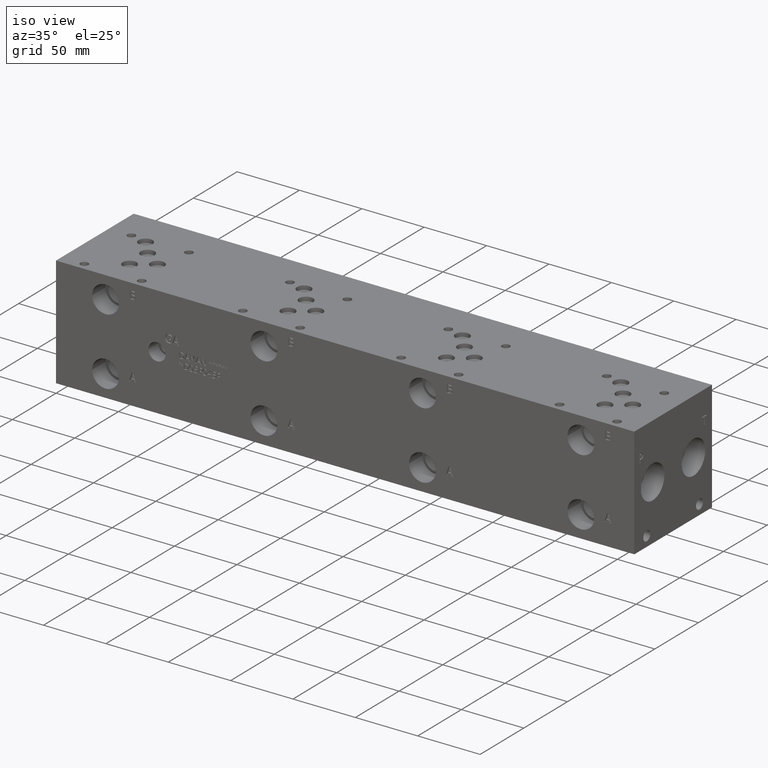
[diagram: clean part render]
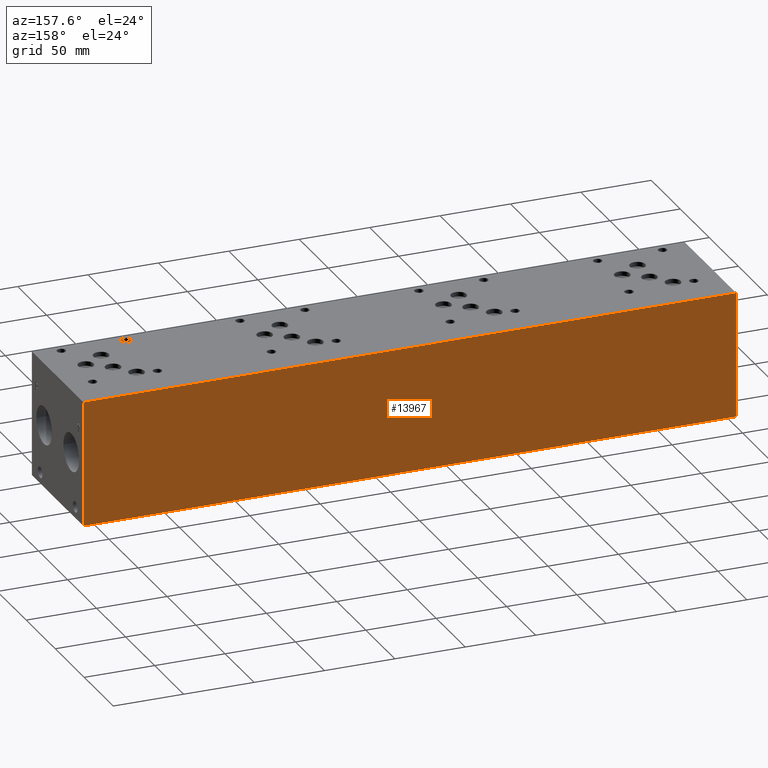
[diagram: tour spotlight — one face highlighted and labeled with its STEP entity id]
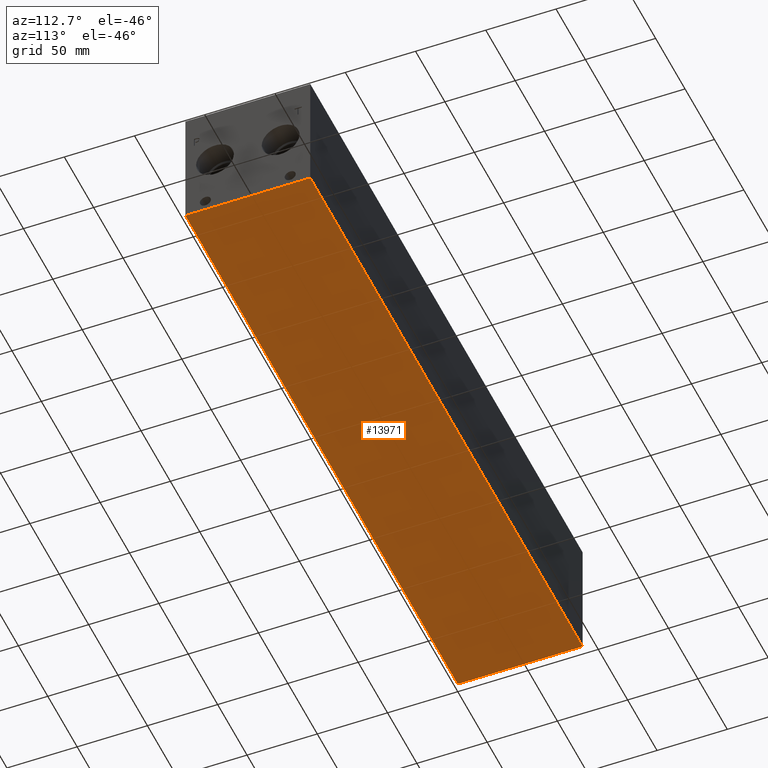
[diagram: tour spotlight — one face highlighted and labeled with its STEP entity id]
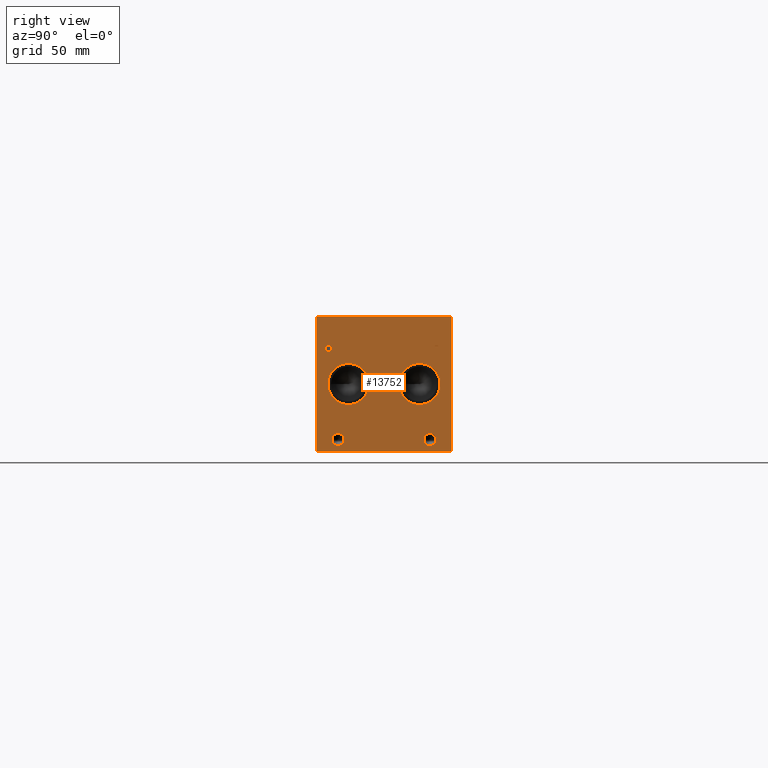
[diagram: tour spotlight — one face highlighted and labeled with its STEP entity id]
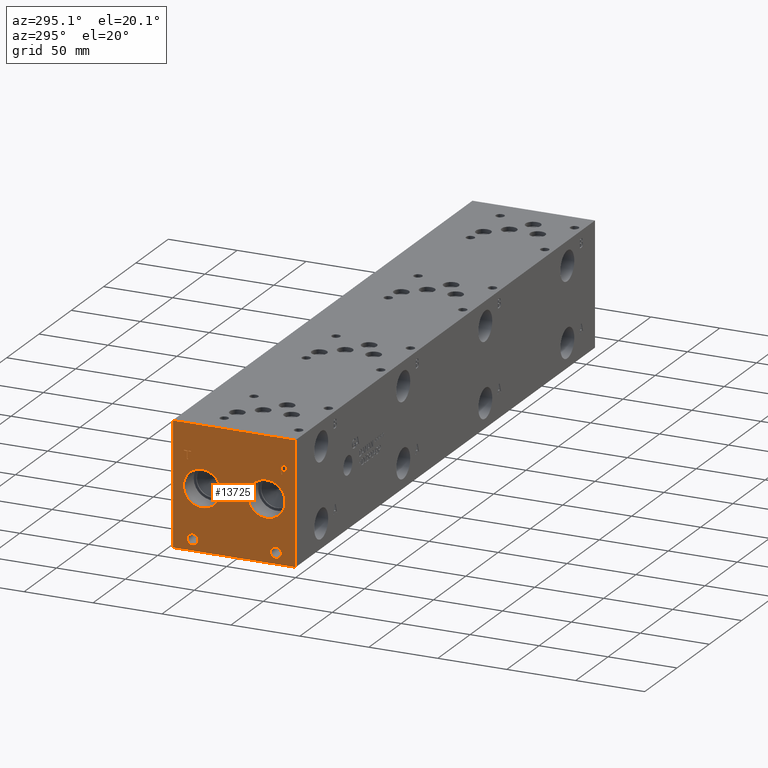
[diagram: tour spotlight — one face highlighted and labeled with its STEP entity id]
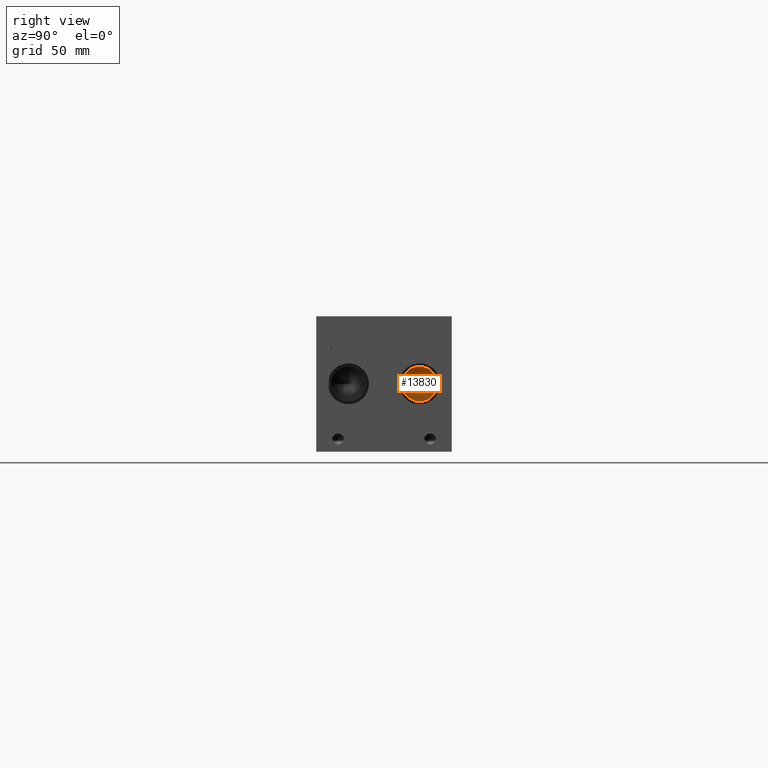
[diagram: tour spotlight — one face highlighted and labeled with its STEP entity id]
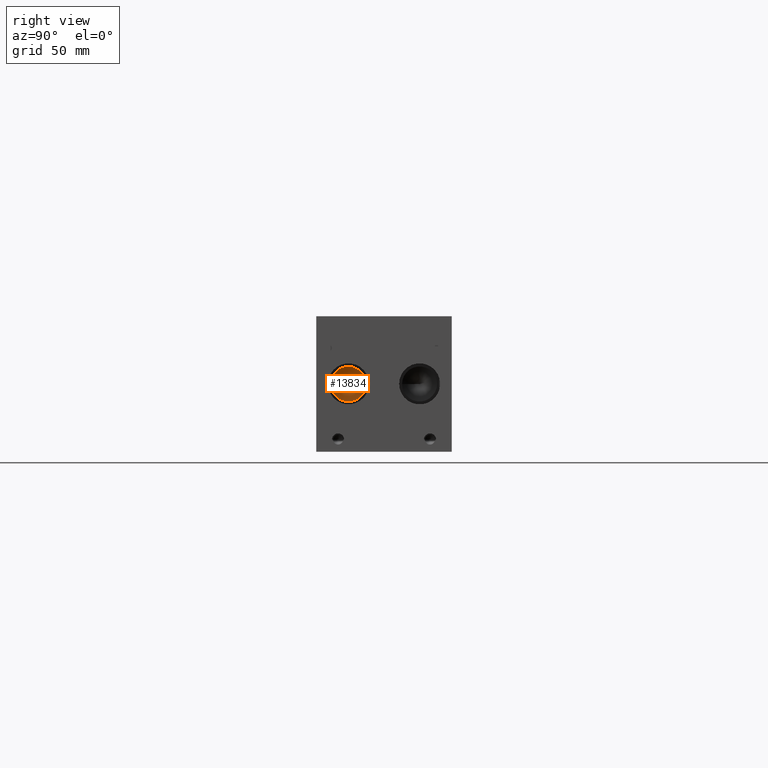
[diagram: tour spotlight — one face highlighted and labeled with its STEP entity id]
A machine part: a face-by-face anatomy tour. The part has 719 B-rep faces; the first image is the clean iso view, then the 6 largest visible faces are spotlighted one at a time (largest first), each with its STEP entity span.

Face 1 — auxiliary view, entity #13967. In plain terms, the highlighted planar face has unit normal (0, 1, 0).
Definition (entity closure, byte-faithful):
#2310=FACE_OUTER_BOUND('',#3135,.T.);
#3135=EDGE_LOOP('',(#12743,#12744,#12745,#12746));
#4176=LINE('',#22416,#5462);
#4234=LINE('',#22687,#5520);
#4456=LINE('',#23965,#5742);
#4457=LINE('',#23966,#5743);
#5462=VECTOR('',#16528,10.);
#5520=VECTOR('',#16640,10.);
#5742=VECTOR('',#17802,10.);
#5743=VECTOR('',#17803,10.);
#6636=VERTEX_POINT('',#22412);
#6637=VERTEX_POINT('',#22414);
#6694=VERTEX_POINT('',#22684);
#6695=VERTEX_POINT('',#22686);
#8402=EDGE_CURVE('',#6636,#6637,#4176,.T.);
#8484=EDGE_CURVE('',#6694,#6695,#4234,.T.);
#8997=EDGE_CURVE('',#6694,#6636,#4456,.T.);
#8998=EDGE_CURVE('',#6695,#6637,#4457,.T.);
#12743=ORIENTED_EDGE('',*,*,#8997,.T.);
#12744=ORIENTED_EDGE('',*,*,#8402,.T.);
#12745=ORIENTED_EDGE('',*,*,#8998,.F.);
#12746=ORIENTED_EDGE('',*,*,#8484,.F.);
#13248=PLANE('',#14827);
#13967=ADVANCED_FACE('',(#2310),#13248,.T.);
#14827=AXIS2_PLACEMENT_3D('',#23964,#17800,#17801);
#16528=DIRECTION('',(0.,0.,1.));
#16640=DIRECTION('',(0.,0.,1.));
#17800=DIRECTION('center_axis',(0.,1.,0.));
#17801=DIRECTION('ref_axis',(-1.,0.,0.));
#17802=DIRECTION('',(-1.,0.,0.));
#17803=DIRECTION('',(-1.,0.,0.));
#22412=CARTESIAN_POINT('',(0.,88.9,0.));
#22414=CARTESIAN_POINT('',(0.,88.9,88.9));
#22416=CARTESIAN_POINT('',(0.,88.9,0.));
#22684=CARTESIAN_POINT('',(463.55,88.9,0.));
#22686=CARTESIAN_POINT('',(463.55,88.9,88.9));
#22687=CARTESIAN_POINT('',(463.55,88.9,0.));
#23964=CARTESIAN_POINT('Origin',(463.55,88.9,0.));
#23965=CARTESIAN_POINT('',(463.55,88.9,0.));
#23966=CARTESIAN_POINT('',(463.55,88.9,88.9));

Face 2 — auxiliary view, entity #13971. In plain terms, the highlighted planar face has unit normal (0, 0, 1).
Definition (entity closure, byte-faithful):
#2314=FACE_OUTER_BOUND('',#3171,.T.);
#3171=EDGE_LOOP('',(#12829,#12830,#12831,#12832));
#3205=LINE('',#17883,#4491);
#4174=LINE('',#22413,#5460);
#4233=LINE('',#22685,#5519);
#4456=LINE('',#23965,#5742);
#4491=VECTOR('',#14893,10.);
#5460=VECTOR('',#16526,10.);
#5519=VECTOR('',#16639,10.);
#5742=VECTOR('',#17802,10.);
#5766=VERTEX_POINT('',#17881);
#5767=VERTEX_POINT('',#17882);
#6636=VERTEX_POINT('',#22412);
#6694=VERTEX_POINT('',#22684);
#7115=EDGE_CURVE('',#5766,#5767,#3205,.T.);
#8400=EDGE_CURVE('',#6636,#5766,#4174,.T.);
#8483=EDGE_CURVE('',#5767,#6694,#4233,.T.);
#8997=EDGE_CURVE('',#6694,#6636,#4456,.T.);
#12829=ORIENTED_EDGE('',*,*,#7115,.F.);
#12830=ORIENTED_EDGE('',*,*,#8400,.F.);
#12831=ORIENTED_EDGE('',*,*,#8997,.F.);
#12832=ORIENTED_EDGE('',*,*,#8483,.F.);
#13252=PLANE('',#14831);
#13971=ADVANCED_FACE('',(#2314),#13252,.F.);
#14831=AXIS2_PLACEMENT_3D('',#23970,#17810,#17811);
#14893=DIRECTION('',(1.,0.,0.));
#16526=DIRECTION('',(0.,-1.,0.));
#16639=DIRECTION('',(0.,1.,0.));
#17802=DIRECTION('',(-1.,0.,0.));
#17810=DIRECTION('center_axis',(0.,0.,1.));
#17811=DIRECTION('ref_axis',(1.,0.,0.));
#17881=CARTESIAN_POINT('',(0.,0.,0.));
#17882=CARTESIAN_POINT('',(463.55,0.,0.));
#17883=CARTESIAN_POINT('',(0.,0.,0.));
#22412=CARTESIAN_POINT('',(0.,88.9,0.));
#22413=CARTESIAN_POINT('',(0.,88.9,0.));
#22684=CARTESIAN_POINT('',(463.55,88.9,0.));
#22685=CARTESIAN_POINT('',(463.55,0.,0.));
#23965=CARTESIAN_POINT('',(463.55,88.9,0.));
#23970=CARTESIAN_POINT('Origin',(231.775,44.45,0.));

Face 3 — right view, entity #13752. In plain terms, the highlighted planar face has unit normal (1, 0, 0).
Definition (entity closure, byte-faithful):
#853=CIRCLE('',#14358,13.462);
#854=CIRCLE('',#14359,13.462);
#855=CIRCLE('',#14360,13.462);
#856=CIRCLE('',#14361,13.462);
#857=CIRCLE('',#14362,3.9624);
#858=CIRCLE('',#14363,3.9624);
#859=CIRCLE('',#14364,3.9624);
#860=CIRCLE('',#14365,3.9624);
#1428=B_SPLINE_CURVE_WITH_KNOTS('',2,(#22586,#22587,#22588,#22589),
 .UNSPECIFIED.,.F.,.F.,(3,1,3),(0.,1.,2.),.UNSPECIFIED.);
#1430=B_SPLINE_CURVE_WITH_KNOTS('',2,(#22607,#22608,#22609,#22610),
 .UNSPECIFIED.,.F.,.F.,(3,1,3),(0.,1.,2.),.UNSPECIFIED.);
#1432=B_SPLINE_CURVE_WITH_KNOTS('',2,(#22656,#22657,#22658,#22659),
 .UNSPECIFIED.,.F.,.F.,(3,1,3),(0.,1.,2.),.UNSPECIFIED.);
#1434=B_SPLINE_CURVE_WITH_KNOTS('',2,(#22674,#22675,#22676,#22677),
 .UNSPECIFIED.,.F.,.F.,(3,1,3),(0.,1.,2.),.UNSPECIFIED.);
#1522=FACE_BOUND('',#2879,.T.);
#1523=FACE_BOUND('',#2880,.T.);
#1524=FACE_BOUND('',#2881,.T.);
#1525=FACE_BOUND('',#2882,.T.);
#1526=FACE_BOUND('',#2883,.T.);
#1527=FACE_BOUND('',#2884,.T.);
#2095=FACE_OUTER_BOUND('',#2878,.T.);
#2878=EDGE_LOOP('',(#11725,#11726,#11727,#11728));
#2879=EDGE_LOOP('',(#11729,#11730));
#2880=EDGE_LOOP('',(#11731,#11732));
#2881=EDGE_LOOP('',(#11733,#11734));
#2882=EDGE_LOOP('',(#11735,#11736));
#2883=EDGE_LOOP('',(#11737,#11738,#11739,#11740,#11741,#11742,#11743,#11744));
#2884=EDGE_LOOP('',(#11745,#11746,#11747,#11748,#11749,#11750,#11751,#11752,
#11753));
#3206=LINE('',#17885,#4492);
#4217=LINE('',#22619,#5503);
#4220=LINE('',#22625,#5506);
#4223=LINE('',#22631,#5509);
#4226=LINE('',#22637,#5512);
#4229=LINE('',#22643,#5515);
#4233=LINE('',#22685,#5519);
#4234=LINE('',#22687,#5520);
#4235=LINE('',#22688,#5521);
#4236=LINE('',#22707,#5522);
#4237=LINE('',#22709,#5523);
#4238=LINE('',#22711,#5524);
#4239=LINE('',#22713,#5525);
#4240=LINE('',#22715,#5526);
#4241=LINE('',#22717,#5527);
#4242=LINE('',#22719,#5528);
#4243=LINE('',#22720,#5529);
#4492=VECTOR('',#14894,10.);
#5503=VECTOR('',#16611,10.);
#5506=VECTOR('',#16616,10.);
#5509=VECTOR('',#16621,10.);
#5512=VECTOR('',#16626,10.);
#5515=VECTOR('',#16631,10.);
#5519=VECTOR('',#16639,10.);
#5520=VECTOR('',#16640,10.);
#5521=VECTOR('',#16641,10.);
#5522=VECTOR('',#16658,10.);
#5523=VECTOR('',#16659,10.);
#5524=VECTOR('',#16660,10.);
#5525=VECTOR('',#16661,10.);
#5526=VECTOR('',#16662,10.);
#5527=VECTOR('',#16663,10.);
#5528=VECTOR('',#16664,10.);
#5529=VECTOR('',#16665,10.);
#5767=VERTEX_POINT('',#17882);
#5768=VERTEX_POINT('',#17884);
#6676=VERTEX_POINT('',#22584);
#6677=VERTEX_POINT('',#22585);
#6680=VERTEX_POINT('',#22606);
#6682=VERTEX_POINT('',#22618);
#6684=VERTEX_POINT('',#22624);
#6686=VERTEX_POINT('',#22630);
#6688=VERTEX_POINT('',#22636);
#6690=VERTEX_POINT('',#22642);
#6692=VERTEX_POINT('',#22655);
#6694=VERTEX_POINT('',#22684);
#6695=VERTEX_POINT('',#22686);
#6696=VERTEX_POINT('',#22689);
#6697=VERTEX_POINT('',#22690);
#6698=VERTEX_POINT('',#22693);
#6699=VERTEX_POINT('',#22694);
#6700=VERTEX_POINT('',#22697);
#6701=VERTEX_POINT('',#22698);
#6702=VERTEX_POINT('',#22701);
#6703=VERTEX_POINT('',#22702);
#6704=VERTEX_POINT('',#22705);
#6705=VERTEX_POINT('',#22706);
#6706=VERTEX_POINT('',#22708);
#6707=VERTEX_POINT('',#22710);
#6708=VERTEX_POINT('',#22712);
#6709=VERTEX_POINT('',#22714);
#6710=VERTEX_POINT('',#22716);
#6711=VERTEX_POINT('',#22718);
#7116=EDGE_CURVE('',#5767,#5768,#3206,.T.);
#8456=EDGE_CURVE('',#6676,#6677,#1428,.T.);
#8460=EDGE_CURVE('',#6680,#6676,#1430,.T.);
#8463=EDGE_CURVE('',#6682,#6680,#4217,.T.);
#8466=EDGE_CURVE('',#6684,#6682,#4220,.T.);
#8469=EDGE_CURVE('',#6686,#6684,#4223,.T.);
#8472=EDGE_CURVE('',#6688,#6686,#4226,.T.);
#8475=EDGE_CURVE('',#6690,#6688,#4229,.T.);
#8478=EDGE_CURVE('',#6692,#6690,#1432,.T.);
#8481=EDGE_CURVE('',#6677,#6692,#1434,.T.);
#8483=EDGE_CURVE('',#5767,#6694,#4233,.T.);
#8484=EDGE_CURVE('',#6694,#6695,#4234,.T.);
#8485=EDGE_CURVE('',#5768,#6695,#4235,.T.);
#8486=EDGE_CURVE('',#6696,#6697,#853,.T.);
#8487=EDGE_CURVE('',#6697,#6696,#854,.T.);
#8488=EDGE_CURVE('',#6698,#6699,#855,.T.);
#8489=EDGE_CURVE('',#6699,#6698,#856,.T.);
#8490=EDGE_CURVE('',#6700,#6701,#857,.T.);
#8491=EDGE_CURVE('',#6701,#6700,#858,.T.);
#8492=EDGE_CURVE('',#6702,#6703,#859,.T.);
#8493=EDGE_CURVE('',#6703,#6702,#860,.T.);
#8494=EDGE_CURVE('',#6704,#6705,#4236,.T.);
#8495=EDGE_CURVE('',#6705,#6706,#4237,.T.);
#8496=EDGE_CURVE('',#6706,#6707,#4238,.T.);
#8497=EDGE_CURVE('',#6707,#6708,#4239,.T.);
#8498=EDGE_CURVE('',#6708,#6709,#4240,.T.);
#8499=EDGE_CURVE('',#6709,#6710,#4241,.T.);
#8500=EDGE_CURVE('',#6710,#6711,#4242,.T.);
#8501=EDGE_CURVE('',#6711,#6704,#4243,.T.);
#11725=ORIENTED_EDGE('',*,*,#8483,.T.);
#11726=ORIENTED_EDGE('',*,*,#8484,.T.);
#11727=ORIENTED_EDGE('',*,*,#8485,.F.);
#11728=ORIENTED_EDGE('',*,*,#7116,.F.);
#11729=ORIENTED_EDGE('',*,*,#8486,.T.);
#11730=ORIENTED_EDGE('',*,*,#8487,.T.);
#11731=ORIENTED_EDGE('',*,*,#8488,.T.);
#11732=ORIENTED_EDGE('',*,*,#8489,.T.);
#11733=ORIENTED_EDGE('',*,*,#8490,.T.);
#11734=ORIENTED_EDGE('',*,*,#8491,.T.);
#11735=ORIENTED_EDGE('',*,*,#8492,.T.);
#11736=ORIENTED_EDGE('',*,*,#8493,.T.);
#11737=ORIENTED_EDGE('',*,*,#8494,.T.);
#11738=ORIENTED_EDGE('',*,*,#8495,.T.);
#11739=ORIENTED_EDGE('',*,*,#8496,.T.);
#11740=ORIENTED_EDGE('',*,*,#8497,.T.);
#11741=ORIENTED_EDGE('',*,*,#8498,.T.);
#11742=ORIENTED_EDGE('',*,*,#8499,.T.);
#11743=ORIENTED_EDGE('',*,*,#8500,.T.);
#11744=ORIENTED_EDGE('',*,*,#8501,.T.);
#11745=ORIENTED_EDGE('',*,*,#8456,.T.);
#11746=ORIENTED_EDGE('',*,*,#8481,.T.);
#11747=ORIENTED_EDGE('',*,*,#8478,.T.);
#11748=ORIENTED_EDGE('',*,*,#8475,.T.);
#11749=ORIENTED_EDGE('',*,*,#8472,.T.);
#11750=ORIENTED_EDGE('',*,*,#8469,.T.);
#11751=ORIENTED_EDGE('',*,*,#8466,.T.);
#11752=ORIENTED_EDGE('',*,*,#8463,.T.);
#11753=ORIENTED_EDGE('',*,*,#8460,.T.);
#13178=PLANE('',#14357);
#13752=ADVANCED_FACE('',(#2095,#1522,#1523,#1524,#1525,#1526,#1527),#13178,
 .T.);
#14357=AXIS2_PLACEMENT_3D('',#22683,#16637,#16638);
#14358=AXIS2_PLACEMENT_3D('',#22691,#16642,#16643);
#14359=AXIS2_PLACEMENT_3D('',#22692,#16644,#16645);
#14360=AXIS2_PLACEMENT_3D('',#22695,#16646,#16647);
#14361=AXIS2_PLACEMENT_3D('',#22696,#16648,#16649);
#14362=AXIS2_PLACEMENT_3D('',#22699,#16650,#16651);
#14363=AXIS2_PLACEMENT_3D('',#22700,#16652,#16653);
#14364=AXIS2_PLACEMENT_3D('',#22703,#16654,#16655);
#14365=AXIS2_PLACEMENT_3D('',#22704,#16656,#16657);
#14894=DIRECTION('',(0.,0.,1.));
#16611=DIRECTION('',(0.,1.,0.));
#16616=DIRECTION('',(0.,0.,1.));
#16621=DIRECTION('',(0.,-1.,0.));
#16626=DIRECTION('',(0.,0.,-1.));
#16631=DIRECTION('',(0.,-1.,0.));
#16637=DIRECTION('center_axis',(1.,0.,0.));
#16638=DIRECTION('ref_axis',(0.,1.,0.));
#16639=DIRECTION('',(0.,1.,0.));
#16640=DIRECTION('',(0.,0.,1.));
#16641=DIRECTION('',(0.,1.,0.));
#16642=DIRECTION('center_axis',(-1.,0.,0.));
#16643=DIRECTION('ref_axis',(0.,1.,0.));
#16644=DIRECTION('center_axis',(-1.,0.,0.));
#16645=DIRECTION('ref_axis',(0.,1.,0.));
#16646=DIRECTION('center_axis',(-1.,0.,0.));
#16647=DIRECTION('ref_axis',(0.,1.,0.));
#16648=DIRECTION('center_axis',(-1.,0.,0.));
#16649=DIRECTION('ref_axis',(0.,1.,0.));
#16650=DIRECTION('center_axis',(-1.,0.,0.));
#16651=DIRECTION('ref_axis',(0.,1.,0.));
#16652=DIRECTION('center_axis',(-1.,0.,0.));
#16653=DIRECTION('ref_axis',(0.,1.,0.));
#16654=DIRECTION('center_axis',(-1.,0.,0.));
#16655=DIRECTION('ref_axis',(0.,1.,0.));
#16656=DIRECTION('center_axis',(-1.,0.,0.));
#16657=DIRECTION('ref_axis',(0.,1.,0.));
#16658=DIRECTION('',(0.,-1.,0.));
#16659=DIRECTION('',(0.,0.,1.));
#16660=DIRECTION('',(0.,-1.,0.));
#16661=DIRECTION('',(0.,0.,1.));
#16662=DIRECTION('',(0.,1.,0.));
#16663=DIRECTION('',(0.,0.,-1.));
#16664=DIRECTION('',(0.,-1.,0.));
#16665=DIRECTION('',(0.,0.,-1.));
#17882=CARTESIAN_POINT('',(463.55,0.,0.));
#17884=CARTESIAN_POINT('',(463.55,0.,88.9));
#17885=CARTESIAN_POINT('',(463.55,0.,0.));
#22584=CARTESIAN_POINT('',(463.55,9.45681720235939,69.4537681439707));
#22585=CARTESIAN_POINT('',(463.55,10.213259654532,67.935737372604));
#22586=CARTESIAN_POINT('Ctrl Pts',(463.55,9.45681720235939,69.4537681439707));
#22587=CARTESIAN_POINT('Ctrl Pts',(463.55,9.81188202684857,69.2119123939564));
#22588=CARTESIAN_POINT('Ctrl Pts',(463.55,10.213259654532,68.4657616758269));
#22589=CARTESIAN_POINT('Ctrl Pts',(463.55,10.213259654532,67.935737372604));
#22606=CARTESIAN_POINT('',(463.55,7.7947021543883,69.8499999046326));
#22607=CARTESIAN_POINT('Ctrl Pts',(463.55,7.7947021543883,69.8499999046326));
#22608=CARTESIAN_POINT('Ctrl Pts',(463.55,8.36074752676236,69.8499999046326));
#22609=CARTESIAN_POINT('Ctrl Pts',(463.55,9.15321104808603,69.6647486918556));
#22610=CARTESIAN_POINT('Ctrl Pts',(463.55,9.45681720235939,69.4537681439707));
#22618=CARTESIAN_POINT('',(463.55,6.19948337769779,69.8499999046326));
#22619=CARTESIAN_POINT('',(463.55,3.09974168884889,69.8499999046326));
#22624=CARTESIAN_POINT('',(463.55,6.19948337769779,63.5));
#22625=CARTESIAN_POINT('',(463.55,6.19948337769779,31.75));
#22630=CARTESIAN_POINT('',(463.55,7.04340556923729,63.5));
#22631=CARTESIAN_POINT('',(463.55,3.52170278461864,63.5));
#22636=CARTESIAN_POINT('',(463.55,7.04340556923729,65.8670988299279));
#22637=CARTESIAN_POINT('',(463.55,7.04340556923729,32.9335494149639));
#22642=CARTESIAN_POINT('',(463.55,7.75868108523723,65.8670988299279));
#22643=CARTESIAN_POINT('',(463.55,3.87934054261861,65.8670988299279));
#22655=CARTESIAN_POINT('',(463.55,9.6575060162011,66.5257698086904));
#22656=CARTESIAN_POINT('Ctrl Pts',(463.55,9.6575060162011,66.5257698086904));
#22657=CARTESIAN_POINT('Ctrl Pts',(463.55,9.32817052681983,66.2015801863307));
#22658=CARTESIAN_POINT('Ctrl Pts',(463.55,8.43793553208609,65.8670988299279));
#22659=CARTESIAN_POINT('Ctrl Pts',(463.55,7.75868108523723,65.8670988299279));
#22674=CARTESIAN_POINT('Ctrl Pts',(463.55,10.213259654532,67.935737372604));
#22675=CARTESIAN_POINT('Ctrl Pts',(463.55,10.213259654532,67.5240680108774));
#22676=CARTESIAN_POINT('Ctrl Pts',(463.55,9.9199452343018,66.7830631597695));
#22677=CARTESIAN_POINT('Ctrl Pts',(463.55,9.6575060162011,66.5257698086904));
#22683=CARTESIAN_POINT('Origin',(463.55,0.,0.));
#22684=CARTESIAN_POINT('',(463.55,88.9,0.));
#22685=CARTESIAN_POINT('',(463.55,0.,0.));
#22686=CARTESIAN_POINT('',(463.55,88.9,88.9));
#22687=CARTESIAN_POINT('',(463.55,88.9,0.));
#22688=CARTESIAN_POINT('',(463.55,0.,88.9));
#22689=CARTESIAN_POINT('',(463.55,34.544,44.45));
#22690=CARTESIAN_POINT('',(463.55,7.62,44.45));
#22691=CARTESIAN_POINT('Origin',(463.55,21.082,44.45));
#22692=CARTESIAN_POINT('Origin',(463.55,21.082,44.45));
#22693=CARTESIAN_POINT('',(463.55,81.28,44.45));
#22694=CARTESIAN_POINT('',(463.55,54.356,44.45));
#22695=CARTESIAN_POINT('Origin',(463.55,67.818,44.45));
#22696=CARTESIAN_POINT('Origin',(463.55,67.818,44.45));
#22697=CARTESIAN_POINT('',(463.55,78.5876,7.9248));
#22698=CARTESIAN_POINT('',(463.55,70.6628,7.9248));
#22699=CARTESIAN_POINT('Origin',(463.55,74.6252,7.9248));
#22700=CARTESIAN_POINT('Origin',(463.55,74.6252,7.9248));
#22701=CARTESIAN_POINT('',(463.55,18.2372,7.9248));
#22702=CARTESIAN_POINT('',(463.55,10.3124,7.9248));
#22703=CARTESIAN_POINT('Origin',(463.55,14.2748,7.9248));
#22704=CARTESIAN_POINT('Origin',(463.55,14.2748,7.9248));
#22705=CARTESIAN_POINT('',(463.55,80.756665271453,63.5));
#22706=CARTESIAN_POINT('',(463.55,79.9127430799135,63.5));
#22707=CARTESIAN_POINT('',(463.55,40.3783326357265,63.5));
#22708=CARTESIAN_POINT('',(463.55,79.9127430799135,69.0987033194816));
#22709=CARTESIAN_POINT('',(463.55,79.9127430799135,31.75));
#22710=CARTESIAN_POINT('',(463.55,77.7823541329784,69.0987033194816));
#22711=CARTESIAN_POINT('',(463.55,39.9563715399567,69.0987033194816));
#22712=CARTESIAN_POINT('',(463.55,77.7823541329784,69.8499999046326));
#22713=CARTESIAN_POINT('',(463.55,77.7823541329784,34.5493516597408));
#22714=CARTESIAN_POINT('',(463.55,82.8870542183881,69.8499999046326));
#22715=CARTESIAN_POINT('',(463.55,38.8911770664892,69.8499999046326));
#22716=CARTESIAN_POINT('',(463.55,82.8870542183881,69.0987033194816));
#22717=CARTESIAN_POINT('',(463.55,82.8870542183881,34.9249999523163));
#22718=CARTESIAN_POINT('',(463.55,80.756665271453,69.0987033194816));
#22719=CARTESIAN_POINT('',(463.55,41.443527109194,69.0987033194816));
#22720=CARTESIAN_POINT('',(463.55,80.756665271453,34.5493516597408));

Face 4 — auxiliary view, entity #13725. In plain terms, the highlighted planar face has unit normal (-1, 0, 0).
Definition (entity closure, byte-faithful):
#845=CIRCLE('',#14331,3.9624);
#846=CIRCLE('',#14332,3.9624);
#847=CIRCLE('',#14333,3.9624);
#848=CIRCLE('',#14334,3.9624);
#849=CIRCLE('',#14335,13.462);
#850=CIRCLE('',#14336,13.462);
#851=CIRCLE('',#14337,13.462);
#852=CIRCLE('',#14338,13.462);
#1412=B_SPLINE_CURVE_WITH_KNOTS('',2,(#22314,#22315,#22316,#22317),
 .UNSPECIFIED.,.F.,.F.,(3,1,3),(0.,1.,2.),.UNSPECIFIED.);
#1414=B_SPLINE_CURVE_WITH_KNOTS('',2,(#22335,#22336,#22337,#22338),
 .UNSPECIFIED.,.F.,.F.,(3,1,3),(0.,1.,2.),.UNSPECIFIED.);
#1416=B_SPLINE_CURVE_WITH_KNOTS('',2,(#22384,#22385,#22386,#22387),
 .UNSPECIFIED.,.F.,.F.,(3,1,3),(0.,1.,2.),.UNSPECIFIED.);
#1418=B_SPLINE_CURVE_WITH_KNOTS('',2,(#22402,#22403,#22404,#22405),
 .UNSPECIFIED.,.F.,.F.,(3,1,3),(0.,1.,2.),.UNSPECIFIED.);
#1515=FACE_BOUND('',#2845,.T.);
#1516=FACE_BOUND('',#2846,.T.);
#1517=FACE_BOUND('',#2847,.T.);
#1518=FACE_BOUND('',#2848,.T.);
#1519=FACE_BOUND('',#2849,.T.);
#1520=FACE_BOUND('',#2850,.T.);
#2068=FACE_OUTER_BOUND('',#2844,.T.);
#2844=EDGE_LOOP('',(#11576,#11577,#11578,#11579));
#2845=EDGE_LOOP('',(#11580,#11581));
#2846=EDGE_LOOP('',(#11582,#11583));
#2847=EDGE_LOOP('',(#11584,#11585));
#2848=EDGE_LOOP('',(#11586,#11587));
#2849=EDGE_LOOP('',(#11588,#11589,#11590,#11591,#11592,#11593,#11594,#11595));
#2850=EDGE_LOOP('',(#11596,#11597,#11598,#11599,#11600,#11601,#11602,#11603,
#11604));
#3208=LINE('',#17888,#4494);
#4158=LINE('',#22347,#5444);
#4161=LINE('',#22353,#5447);
#4164=LINE('',#22359,#5450);
#4167=LINE('',#22365,#5453);
#4170=LINE('',#22371,#5456);
#4174=LINE('',#22413,#5460);
#4175=LINE('',#22415,#5461);
#4176=LINE('',#22416,#5462);
#4177=LINE('',#22435,#5463);
#4178=LINE('',#22437,#5464);
#4179=LINE('',#22439,#5465);
#4180=LINE('',#22441,#5466);
#4181=LINE('',#22443,#5467);
#4182=LINE('',#22445,#5468);
#4183=LINE('',#22447,#5469);
#4184=LINE('',#22448,#5470);
#4494=VECTOR('',#14896,10.);
#5444=VECTOR('',#16498,10.);
#5447=VECTOR('',#16503,10.);
#5450=VECTOR('',#16508,10.);
#5453=VECTOR('',#16513,10.);
#5456=VECTOR('',#16518,10.);
#5460=VECTOR('',#16526,10.);
#5461=VECTOR('',#16527,10.);
#5462=VECTOR('',#16528,10.);
#5463=VECTOR('',#16545,10.);
#5464=VECTOR('',#16546,10.);
#5465=VECTOR('',#16547,10.);
#5466=VECTOR('',#16548,10.);
#5467=VECTOR('',#16549,10.);
#5468=VECTOR('',#16550,10.);
#5469=VECTOR('',#16551,10.);
#5470=VECTOR('',#16552,10.);
#5766=VERTEX_POINT('',#17881);
#5769=VERTEX_POINT('',#17886);
#6618=VERTEX_POINT('',#22312);
#6619=VERTEX_POINT('',#22313);
#6622=VERTEX_POINT('',#22334);
#6624=VERTEX_POINT('',#22346);
#6626=VERTEX_POINT('',#22352);
#6628=VERTEX_POINT('',#22358);
#6630=VERTEX_POINT('',#22364);
#6632=VERTEX_POINT('',#22370);
#6634=VERTEX_POINT('',#22383);
#6636=VERTEX_POINT('',#22412);
#6637=VERTEX_POINT('',#22414);
#6638=VERTEX_POINT('',#22417);
#6639=VERTEX_POINT('',#22418);
#6640=VERTEX_POINT('',#22421);
#6641=VERTEX_POINT('',#22422);
#6642=VERTEX_POINT('',#22425);
#6643=VERTEX_POINT('',#22426);
#6644=VERTEX_POINT('',#22429);
#6645=VERTEX_POINT('',#22430);
#6646=VERTEX_POINT('',#22433);
#6647=VERTEX_POINT('',#22434);
#6648=VERTEX_POINT('',#22436);
#6649=VERTEX_POINT('',#22438);
#6650=VERTEX_POINT('',#22440);
#6651=VERTEX_POINT('',#22442);
#6652=VERTEX_POINT('',#22444);
#6653=VERTEX_POINT('',#22446);
#7118=EDGE_CURVE('',#5766,#5769,#3208,.T.);
#8373=EDGE_CURVE('',#6618,#6619,#1412,.T.);
#8377=EDGE_CURVE('',#6622,#6618,#1414,.T.);
#8380=EDGE_CURVE('',#6624,#6622,#4158,.T.);
#8383=EDGE_CURVE('',#6626,#6624,#4161,.T.);
#8386=EDGE_CURVE('',#6628,#6626,#4164,.T.);
#8389=EDGE_CURVE('',#6630,#6628,#4167,.T.);
#8392=EDGE_CURVE('',#6632,#6630,#4170,.T.);
#8395=EDGE_CURVE('',#6634,#6632,#1416,.T.);
#8398=EDGE_CURVE('',#6619,#6634,#1418,.T.);
#8400=EDGE_CURVE('',#6636,#5766,#4174,.T.);
#8401=EDGE_CURVE('',#6637,#5769,#4175,.T.);
#8402=EDGE_CURVE('',#6636,#6637,#4176,.T.);
#8403=EDGE_CURVE('',#6638,#6639,#845,.T.);
#8404=EDGE_CURVE('',#6639,#6638,#846,.T.);
#8405=EDGE_CURVE('',#6640,#6641,#847,.T.);
#8406=EDGE_CURVE('',#6641,#6640,#848,.T.);
#8407=EDGE_CURVE('',#6642,#6643,#849,.T.);
#8408=EDGE_CURVE('',#6643,#6642,#850,.T.);
#8409=EDGE_CURVE('',#6644,#6645,#851,.T.);
#8410=EDGE_CURVE('',#6645,#6644,#852,.T.);
#8411=EDGE_CURVE('',#6646,#6647,#4177,.T.);
#8412=EDGE_CURVE('',#6647,#6648,#4178,.T.);
#8413=EDGE_CURVE('',#6648,#6649,#4179,.T.);
#8414=EDGE_CURVE('',#6649,#6650,#4180,.T.);
#8415=EDGE_CURVE('',#6650,#6651,#4181,.T.);
#8416=EDGE_CURVE('',#6651,#6652,#4182,.T.);
#8417=EDGE_CURVE('',#6652,#6653,#4183,.T.);
#8418=EDGE_CURVE('',#6653,#6646,#4184,.T.);
#11576=ORIENTED_EDGE('',*,*,#8400,.T.);
#11577=ORIENTED_EDGE('',*,*,#7118,.T.);
#11578=ORIENTED_EDGE('',*,*,#8401,.F.);
#11579=ORIENTED_EDGE('',*,*,#8402,.F.);
#11580=ORIENTED_EDGE('',*,*,#8403,.T.);
#11581=ORIENTED_EDGE('',*,*,#8404,.T.);
#11582=ORIENTED_EDGE('',*,*,#8405,.T.);
#11583=ORIENTED_EDGE('',*,*,#8406,.T.);
#11584=ORIENTED_EDGE('',*,*,#8407,.T.);
#11585=ORIENTED_EDGE('',*,*,#8408,.T.);
#11586=ORIENTED_EDGE('',*,*,#8409,.T.);
#11587=ORIENTED_EDGE('',*,*,#8410,.T.);
#11588=ORIENTED_EDGE('',*,*,#8411,.T.);
#11589=ORIENTED_EDGE('',*,*,#8412,.T.);
#11590=ORIENTED_EDGE('',*,*,#8413,.T.);
#11591=ORIENTED_EDGE('',*,*,#8414,.T.);
#11592=ORIENTED_EDGE('',*,*,#8415,.T.);
#11593=ORIENTED_EDGE('',*,*,#8416,.T.);
#11594=ORIENTED_EDGE('',*,*,#8417,.T.);
#11595=ORIENTED_EDGE('',*,*,#8418,.T.);
#11596=ORIENTED_EDGE('',*,*,#8373,.T.);
#11597=ORIENTED_EDGE('',*,*,#8398,.T.);
#11598=ORIENTED_EDGE('',*,*,#8395,.T.);
#11599=ORIENTED_EDGE('',*,*,#8392,.T.);
#11600=ORIENTED_EDGE('',*,*,#8389,.T.);
#11601=ORIENTED_EDGE('',*,*,#8386,.T.);
#11602=ORIENTED_EDGE('',*,*,#8383,.T.);
#11603=ORIENTED_EDGE('',*,*,#8380,.T.);
#11604=ORIENTED_EDGE('',*,*,#8377,.T.);
#13159=PLANE('',#14330);
#13725=ADVANCED_FACE('',(#2068,#1515,#1516,#1517,#1518,#1519,#1520),#13159,
 .T.);
#14330=AXIS2_PLACEMENT_3D('',#22411,#16524,#16525);
#14331=AXIS2_PLACEMENT_3D('',#22419,#16529,#16530);
#14332=AXIS2_PLACEMENT_3D('',#22420,#16531,#16532);
#14333=AXIS2_PLACEMENT_3D('',#22423,#16533,#16534);
#14334=AXIS2_PLACEMENT_3D('',#22424,#16535,#16536);
#14335=AXIS2_PLACEMENT_3D('',#22427,#16537,#16538);
#14336=AXIS2_PLACEMENT_3D('',#22428,#16539,#16540);
#14337=AXIS2_PLACEMENT_3D('',#22431,#16541,#16542);
#14338=AXIS2_PLACEMENT_3D('',#22432,#16543,#16544);
#14896=DIRECTION('',(0.,0.,1.));
#16498=DIRECTION('',(0.,-1.,-5.56775304226775E-15));
#16503=DIRECTION('',(0.,-3.14708893596576E-15,1.));
#16508=DIRECTION('',(0.,1.,0.));
#16513=DIRECTION('',(0.,2.81413604853751E-15,-1.));
#16518=DIRECTION('',(0.,1.,0.));
#16524=DIRECTION('center_axis',(-1.,0.,0.));
#16525=DIRECTION('ref_axis',(0.,-1.,0.));
#16526=DIRECTION('',(0.,-1.,0.));
#16527=DIRECTION('',(0.,-1.,0.));
#16528=DIRECTION('',(0.,0.,1.));
#16529=DIRECTION('center_axis',(1.,0.,0.));
#16530=DIRECTION('ref_axis',(0.,1.,0.));
#16531=DIRECTION('center_axis',(1.,0.,0.));
#16532=DIRECTION('ref_axis',(0.,1.,0.));
#16533=DIRECTION('center_axis',(1.,0.,0.));
#16534=DIRECTION('ref_axis',(0.,1.,0.));
#16535=DIRECTION('center_axis',(1.,0.,0.));
#16536=DIRECTION('ref_axis',(0.,1.,0.));
#16537=DIRECTION('center_axis',(1.,0.,0.));
#16538=DIRECTION('ref_axis',(0.,1.,0.));
#16539=DIRECTION('center_axis',(1.,0.,0.));
#16540=DIRECTION('ref_axis',(0.,1.,0.));
#16541=DIRECTION('center_axis',(1.,0.,0.));
#16542=DIRECTION('ref_axis',(0.,1.,0.));
#16543=DIRECTION('center_axis',(1.,0.,0.));
#16544=DIRECTION('ref_axis',(0.,1.,0.));
#16545=DIRECTION('',(0.,1.,0.));
#16546=DIRECTION('',(0.,-3.17280044688052E-15,1.));
#16547=DIRECTION('',(0.,1.,4.16909044227778E-15));
#16548=DIRECTION('',(0.,0.,1.));
#16549=DIRECTION('',(0.,-1.,-3.47984565141734E-15));
#16550=DIRECTION('',(0.,0.,-1.));
#16551=DIRECTION('',(0.,1.,0.));
#16552=DIRECTION('',(0.,3.17280044688052E-15,-1.));
#17881=CARTESIAN_POINT('',(0.,0.,0.));
#17886=CARTESIAN_POINT('',(0.,0.,88.9));
#17888=CARTESIAN_POINT('',(0.,0.,0.));
#22312=CARTESIAN_POINT('',(0.,7.21193279764059,69.4537681439707));
#22313=CARTESIAN_POINT('',(0.,6.455490345468,67.9357373726039));
#22314=CARTESIAN_POINT('Ctrl Pts',(0.,7.21193279764059,69.4537681439707));
#22315=CARTESIAN_POINT('Ctrl Pts',(0.,6.85686797315142,69.2119123939563));
#22316=CARTESIAN_POINT('Ctrl Pts',(0.,6.455490345468,68.4657616758269));
#22317=CARTESIAN_POINT('Ctrl Pts',(0.,6.455490345468,67.9357373726039));
#22334=CARTESIAN_POINT('',(0.,8.87404784561168,69.8499999046326));
#22335=CARTESIAN_POINT('Ctrl Pts',(0.,8.87404784561168,69.8499999046326));
#22336=CARTESIAN_POINT('Ctrl Pts',(0.,8.30800247323763,69.8499999046326));
#22337=CARTESIAN_POINT('Ctrl Pts',(0.,7.51553895191395,69.6647486918556));
#22338=CARTESIAN_POINT('Ctrl Pts',(0.,7.21193279764059,69.4537681439707));
#22346=CARTESIAN_POINT('',(0.,10.4692666223022,69.8499999046326));
#22347=CARTESIAN_POINT('',(0.,49.6846333111509,69.8499999046328));
#22352=CARTESIAN_POINT('',(0.,10.4692666223022,63.5));
#22353=CARTESIAN_POINT('',(0.,10.4692666223023,31.7499999999999));
#22358=CARTESIAN_POINT('',(0.,9.62534443076272,63.5));
#22359=CARTESIAN_POINT('',(0.,49.2626722153814,63.5));
#22364=CARTESIAN_POINT('',(0.,9.62534443076271,65.8670988299279));
#22365=CARTESIAN_POINT('',(0.,9.6253444307628,32.9335494149638));
#22370=CARTESIAN_POINT('',(0.,8.91006891476277,65.8670988299279));
#22371=CARTESIAN_POINT('',(0.,48.9050344573814,65.8670988299279));
#22383=CARTESIAN_POINT('',(0.,7.01124398379889,66.5257698086904));
#22384=CARTESIAN_POINT('Ctrl Pts',(0.,7.01124398379889,66.5257698086904));
#22385=CARTESIAN_POINT('Ctrl Pts',(0.,7.34057947318016,66.2015801863307));
#22386=CARTESIAN_POINT('Ctrl Pts',(0.,8.2308144679139,65.8670988299279));
#22387=CARTESIAN_POINT('Ctrl Pts',(0.,8.91006891476277,65.8670988299279));
#22402=CARTESIAN_POINT('Ctrl Pts',(0.,6.455490345468,67.9357373726039));
#22403=CARTESIAN_POINT('Ctrl Pts',(0.,6.455490345468,67.5240680108774));
#22404=CARTESIAN_POINT('Ctrl Pts',(0.,6.7488047656982,66.7830631597695));
#22405=CARTESIAN_POINT('Ctrl Pts',(0.,7.01124398379889,66.5257698086904));
#22411=CARTESIAN_POINT('Origin',(0.,88.9,0.));
#22412=CARTESIAN_POINT('',(0.,88.9,0.));
#22413=CARTESIAN_POINT('',(0.,88.9,0.));
#22414=CARTESIAN_POINT('',(0.,88.9,88.9));
#22415=CARTESIAN_POINT('',(0.,88.9,88.9));
#22416=CARTESIAN_POINT('',(0.,88.9,0.));
#22417=CARTESIAN_POINT('',(0.,78.5876,7.92479999999999));
#22418=CARTESIAN_POINT('',(0.,70.6628,7.92479999999999));
#22419=CARTESIAN_POINT('Origin',(0.,74.6252,7.92479999999999));
#22420=CARTESIAN_POINT('Origin',(0.,74.6252,7.92479999999999));
#22421=CARTESIAN_POINT('',(0.,18.2372,7.92479999999999));
#22422=CARTESIAN_POINT('',(0.,10.3124,7.92479999999999));
#22423=CARTESIAN_POINT('Origin',(0.,14.2748,7.92479999999999));
#22424=CARTESIAN_POINT('Origin',(0.,14.2748,7.92479999999999));
#22425=CARTESIAN_POINT('',(0.,34.544,44.45));
#22426=CARTESIAN_POINT('',(1.11022302462516E-15,7.62,44.45));
#22427=CARTESIAN_POINT('Origin',(0.,21.082,44.45));
#22428=CARTESIAN_POINT('Origin',(0.,21.082,44.45));
#22429=CARTESIAN_POINT('',(0.,81.28,44.45));
#22430=CARTESIAN_POINT('',(1.11022302462516E-15,54.356,44.45));
#22431=CARTESIAN_POINT('Origin',(0.,67.818,44.45));
#22432=CARTESIAN_POINT('Origin',(0.,67.818,44.45));
#22433=CARTESIAN_POINT('',(0.,77.993334728547,63.5));
#22434=CARTESIAN_POINT('',(0.,78.8372569200865,63.5));
#22435=CARTESIAN_POINT('',(0.,83.4466673642735,63.5));
#22436=CARTESIAN_POINT('',(0.,78.8372569200865,69.0987033194815));
#22437=CARTESIAN_POINT('',(0.,78.8372569200866,31.75));
#22438=CARTESIAN_POINT('',(0.,80.9676458670216,69.0987033194815));
#22439=CARTESIAN_POINT('',(0.,83.8686284600431,69.0987033194816));
#22440=CARTESIAN_POINT('',(0.,80.9676458670216,69.8499999046325));
#22441=CARTESIAN_POINT('',(0.,80.9676458670216,34.5493516597408));
#22442=CARTESIAN_POINT('',(0.,75.8629457816119,69.8499999046325));
#22443=CARTESIAN_POINT('',(0.,84.9338229335107,69.8499999046326));
#22444=CARTESIAN_POINT('',(0.,75.8629457816119,69.0987033194815));
#22445=CARTESIAN_POINT('',(0.,75.8629457816119,34.9249999523163));
#22446=CARTESIAN_POINT('',(0.,77.993334728547,69.0987033194815));
#22447=CARTESIAN_POINT('',(0.,82.381472890806,69.0987033194815));
#22448=CARTESIAN_POINT('',(0.,77.9933347285471,34.5493516597407));

Face 5 — right view, entity #13830. In plain terms, the highlighted conical surface has half-angle 60 deg.
Definition (entity closure, byte-faithful):
#103=CONICAL_SURFACE('',#14464,5.7531,1.0471975511966);
#896=CIRCLE('',#14465,11.5062);
#897=CIRCLE('',#14466,11.5062);
#2173=FACE_OUTER_BOUND('',#2972,.T.);
#2972=EDGE_LOOP('',(#12108,#12109,#12110,#12111));
#4346=LINE('',#23228,#5632);
#5632=VECTOR('',#16968,5.7531);
#6814=VERTEX_POINT('',#23224);
#6815=VERTEX_POINT('',#23225);
#6816=VERTEX_POINT('',#23227);
#8661=EDGE_CURVE('',#6814,#6815,#896,.T.);
#8662=EDGE_CURVE('',#6815,#6816,#4346,.T.);
#8663=EDGE_CURVE('',#6815,#6814,#897,.T.);
#12108=ORIENTED_EDGE('',*,*,#8661,.T.);
#12109=ORIENTED_EDGE('',*,*,#8662,.T.);
#12110=ORIENTED_EDGE('',*,*,#8662,.F.);
#12111=ORIENTED_EDGE('',*,*,#8663,.T.);
#13830=ADVANCED_FACE('',(#2173),#103,.F.);
#14464=AXIS2_PLACEMENT_3D('',#23223,#16964,#16965);
#14465=AXIS2_PLACEMENT_3D('',#23226,#16966,#16967);
#14466=AXIS2_PLACEMENT_3D('',#23229,#16969,#16970);
#16964=DIRECTION('center_axis',(1.,0.,0.));
#16965=DIRECTION('ref_axis',(0.,1.,0.));
#16966=DIRECTION('center_axis',(1.,0.,0.));
#16967=DIRECTION('ref_axis',(0.,1.,0.));
#16968=DIRECTION('',(-0.5,0.866025403784439,1.06057523872491E-16));
#16969=DIRECTION('center_axis',(1.,0.,0.));
#16970=DIRECTION('ref_axis',(0.,1.,0.));
#23223=CARTESIAN_POINT('Origin',(443.714536166325,67.818,44.45));
#23224=CARTESIAN_POINT('',(447.03609,79.3242,44.45));
#23225=CARTESIAN_POINT('',(447.03609,56.3118,44.45));
#23226=CARTESIAN_POINT('Origin',(447.03609,67.818,44.45));
#23227=CARTESIAN_POINT('',(440.39298233265,67.818,44.45));
#23228=CARTESIAN_POINT('',(443.714536166325,62.0649,44.45));
#23229=CARTESIAN_POINT('Origin',(447.03609,67.818,44.45));

Face 6 — right view, entity #13834. In plain terms, the highlighted conical surface has half-angle 60 deg.
Definition (entity closure, byte-faithful):
#104=CONICAL_SURFACE('',#14473,5.7531,1.0471975511966);
#901=CIRCLE('',#14474,11.5062);
#902=CIRCLE('',#14475,11.5062);
#2177=FACE_OUTER_BOUND('',#2977,.T.);
#2977=EDGE_LOOP('',(#12126,#12127,#12128,#12129));
#4349=LINE('',#23246,#5635);
#5635=VECTOR('',#16989,5.7531);
#6820=VERTEX_POINT('',#23242);
#6821=VERTEX_POINT('',#23243);
#6822=VERTEX_POINT('',#23245);
#8669=EDGE_CURVE('',#6820,#6821,#901,.T.);
#8670=EDGE_CURVE('',#6821,#6822,#4349,.T.);
#8671=EDGE_CURVE('',#6821,#6820,#902,.T.);
#12126=ORIENTED_EDGE('',*,*,#8669,.T.);
#12127=ORIENTED_EDGE('',*,*,#8670,.T.);
#12128=ORIENTED_EDGE('',*,*,#8670,.F.);
#12129=ORIENTED_EDGE('',*,*,#8671,.T.);
#13834=ADVANCED_FACE('',(#2177),#104,.F.);
#14473=AXIS2_PLACEMENT_3D('',#23241,#16985,#16986);
#14474=AXIS2_PLACEMENT_3D('',#23244,#16987,#16988);
#14475=AXIS2_PLACEMENT_3D('',#23247,#16990,#16991);
#16985=DIRECTION('center_axis',(1.,0.,0.));
#16986=DIRECTION('ref_axis',(0.,1.,0.));
#16987=DIRECTION('center_axis',(1.,0.,0.));
#16988=DIRECTION('ref_axis',(0.,1.,0.));
#16989=DIRECTION('',(-0.5,0.866025403784439,1.06057523872491E-16));
#16990=DIRECTION('center_axis',(1.,0.,0.));
#16991=DIRECTION('ref_axis',(0.,1.,0.));
#23241=CARTESIAN_POINT('Origin',(443.714536166325,21.082,44.45));
#23242=CARTESIAN_POINT('',(447.03609,32.5882,44.45));
#23243=CARTESIAN_POINT('',(447.03609,9.57579999999999,44.45));
#23244=CARTESIAN_POINT('Origin',(447.03609,21.082,44.45));
#23245=CARTESIAN_POINT('',(440.39298233265,21.082,44.45));
#23246=CARTESIAN_POINT('',(443.714536166325,15.3289,44.45));
#23247=CARTESIAN_POINT('Origin',(447.03609,21.082,44.45));